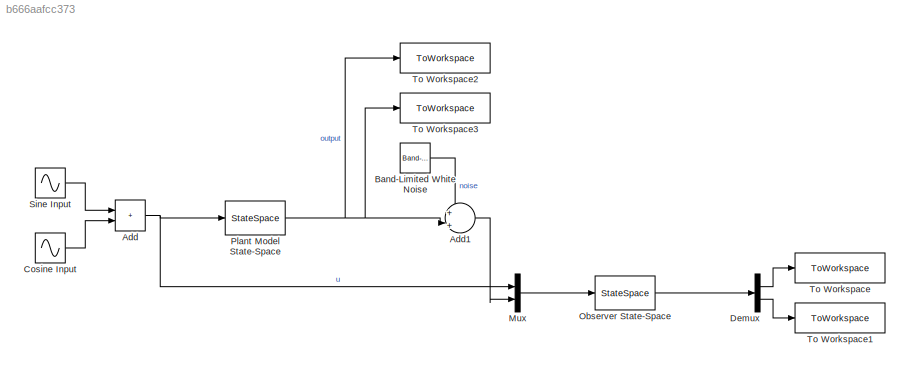
MODEL slx_b666aafcc373
KIND model
CONFIG AbsTol = auto
CONFIG EnableMultiTasking = off
CONFIG FixedStep = auto
CONFIG MaxStep = auto
CONFIG MinStep = auto
CONFIG RelTol = 1e-3
CONFIG SampleTimeConstraint = Unconstrained
CONFIG SolverName = VariableStepAuto
CONFIG StartTime = 0.0
CONFIG StopTime = 30
BLOCK [Sum] Add
  IconShape = rectangular
  Ports = [2, 1]
BLOCK [Sum] Add1
  Inputs = +|+||
  Ports = [2, 1]
BLOCK [Reference] Band-Limited White Noise  REF=simulink/Sources/Band-Limited
White Noise
  Ports = [0, 1]
  SourceBlock = simulink/Sources/Band-Limited\nWhite Noise
  SourceProductBaseCode = SL
  SourceType = Band-Limited White Noise.
BLOCK [Sin] Cosine Input
  Frequency = 2
  Phase = pi / 2
  Ports = [0, 1]
  SampleTime = 0
BLOCK [Demux] Demux
  Outputs = 2
  Ports = [1, 2]
BLOCK [Mux] Mux
  DisplayOption = bar
  Inputs = 2
  Ports = [2, 1]
BLOCK [StateSpace] Observer State-Space
  A = observer.A
  B = observer.B
  C = observer.C
  D = observer.D
  InitialCondition = [3; -2]
  Ports = [1, 1]
BLOCK [StateSpace] Plant Model State-Space
  A = A
  B = B
  C = C
  D = D
  InitialCondition = [3; -2]
  Ports = [1, 1]
BLOCK [Sin] Sine Input
  Amplitude = 2
  Ports = [0, 1]
  SampleTime = 0
BLOCK [ToWorkspace] To Workspace
  FixptAsFi = on
  MaxDataPoints = inf
  Ports = [1]
  SampleTime = -1
  SaveFormat = Timeseries
  VariableName = x1hat
BLOCK [ToWorkspace] To Workspace1
  FixptAsFi = on
  MaxDataPoints = inf
  Ports = [1]
  SampleTime = -1
  SaveFormat = Timeseries
  VariableName = x2hat
BLOCK [ToWorkspace] To Workspace2
  FixptAsFi = on
  MaxDataPoints = inf
  Ports = [1]
  SampleTime = -1
  SaveFormat = Timeseries
  VariableName = x1
BLOCK [ToWorkspace] To Workspace3
  FixptAsFi = on
  MaxDataPoints = inf
  Ports = [1]
  SampleTime = -1
  SaveFormat = Timeseries
  VariableName = x2
LINE Add1:1 -> Mux:2
NET Add:1 -> Mux:1, Plant Model State-Space:1
LINE Band-Limited White Noise:1 -> Add1:1
LINE Cosine Input:1 -> Add:2
LINE Demux:1 -> To Workspace:1
LINE Demux:2 -> To Workspace1:1
LINE Mux:1 -> Observer State-Space:1
LINE Observer State-Space:1 -> Demux:1
NET Plant Model State-Space:1 -> Add1:2, To Workspace2:1, To Workspace3:1
LINE Sine Input:1 -> Add:1
note: NET lines group one-source signal fan-out (src -> all destinations, sorted); 1:1 wires keep LINE
